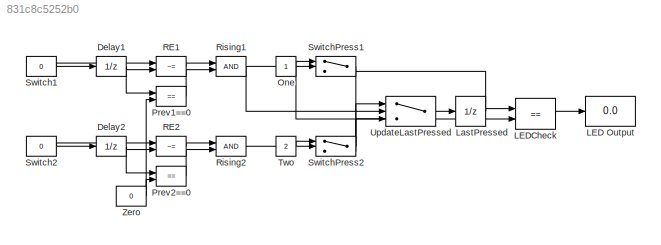
MODEL slx_831c8c5252b0
KIND model
CONFIG AbsTol = auto
CONFIG EnableMultiTasking = off
CONFIG FixedStep = 1
CONFIG MaxStep = auto
CONFIG MinStep = auto
CONFIG RelTol = 1e-3
CONFIG SampleTimeConstraint = Unconstrained
CONFIG SolverName = FixedStepDiscrete
CONFIG StartTime = 0.0
CONFIG StopTime = 10
BLOCK [UnitDelay] Delay1
  HasFrameUpgradeWarning = on
BLOCK [UnitDelay] Delay2
  HasFrameUpgradeWarning = on
BLOCK [Display] LED Output
  Decimation = 1
BLOCK [RelationalOperator] LEDCheck
  InputSameDT = off
  Operator = ==
  OutDataTypeStr = boolean
  RndMeth = Simplest
BLOCK [UnitDelay] LastPressed
  HasFrameUpgradeWarning = on
BLOCK [Constant] One
BLOCK [RelationalOperator] Prev1==0
  InputSameDT = off
  Operator = ==
  OutDataTypeStr = boolean
  RndMeth = Simplest
BLOCK [RelationalOperator] Prev2==0
  InputSameDT = off
  Operator = ==
  OutDataTypeStr = boolean
  RndMeth = Simplest
BLOCK [RelationalOperator] RE1
  InputSameDT = off
  Operator = ~=
  OutDataTypeStr = boolean
  RndMeth = Simplest
BLOCK [RelationalOperator] RE2
  InputSameDT = off
  Operator = ~=
  OutDataTypeStr = boolean
  RndMeth = Simplest
BLOCK [Logic] Rising1
  AllPortsSameDT = off
  OutDataTypeStr = boolean
BLOCK [Logic] Rising2
  AllPortsSameDT = off
  OutDataTypeStr = boolean
BLOCK [Constant] Switch1
  Value = 0
BLOCK [Constant] Switch2
  Value = 0
BLOCK [Switch] SwitchPress1
  Criteria = u2 ~= 0
  InputSameDT = off
  SaturateOnIntegerOverflow = off
  Threshold = 0.5
BLOCK [Switch] SwitchPress2
  Criteria = u2 ~= 0
  InputSameDT = off
  SaturateOnIntegerOverflow = off
  Threshold = 0.5
BLOCK [Constant] Two
  Value = 2
BLOCK [Switch] UpdateLastPressed
  Criteria = u2 ~= 0
  InputSameDT = off
  SaturateOnIntegerOverflow = off
  Threshold = 0.5
BLOCK [Constant] Zero
  Value = 0
NET Delay1:1 -> Prev1==0:1, RE1:2
NET Delay2:1 -> Prev2==0:1, RE2:2
LINE LEDCheck:1 -> LED Output:1
NET LastPressed:1 -> LEDCheck:1, SwitchPress1:3
NET One:1 -> LEDCheck:2, SwitchPress1:1
LINE Prev1==0:1 -> Rising1:2
LINE Prev2==0:1 -> Rising2:2
LINE RE1:1 -> Rising1:1
LINE RE2:1 -> Rising2:1
NET Rising1:1 -> SwitchPress1:2, UpdateLastPressed:2
LINE Rising2:1 -> SwitchPress2:2
NET Switch1:1 -> Delay1:1, RE1:1
NET Switch2:1 -> Delay2:1, RE2:1
LINE SwitchPress1:1 -> SwitchPress2:3
NET SwitchPress2:1 -> UpdateLastPressed:1, UpdateLastPressed:3
LINE Two:1 -> SwitchPress2:1
LINE UpdateLastPressed:1 -> LastPressed:1
NET Zero:1 -> Prev1==0:2, Prev2==0:2
note: NET lines group one-source signal fan-out (src -> all destinations, sorted); 1:1 wires keep LINE
